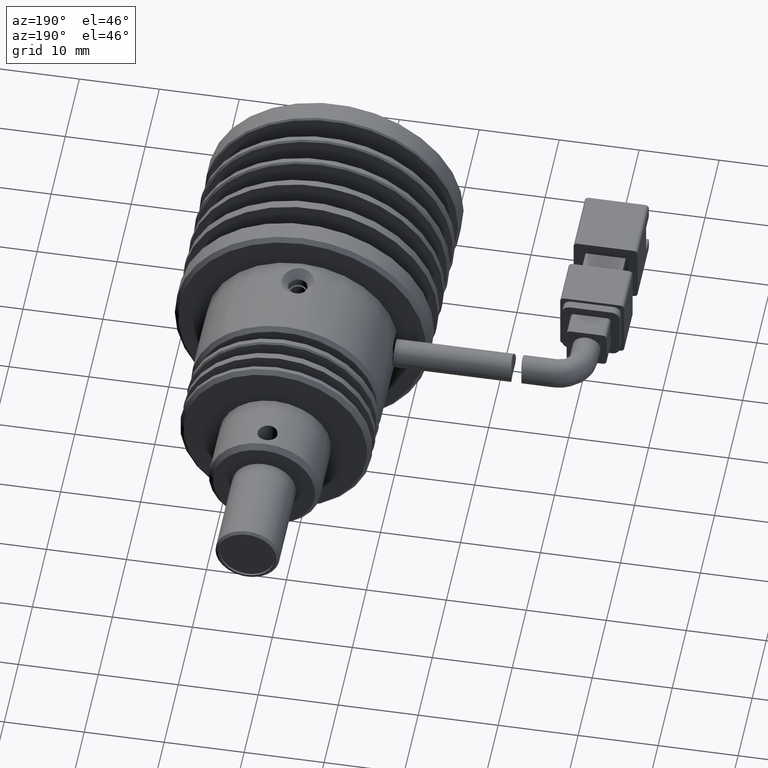
[diagram: clean part render]
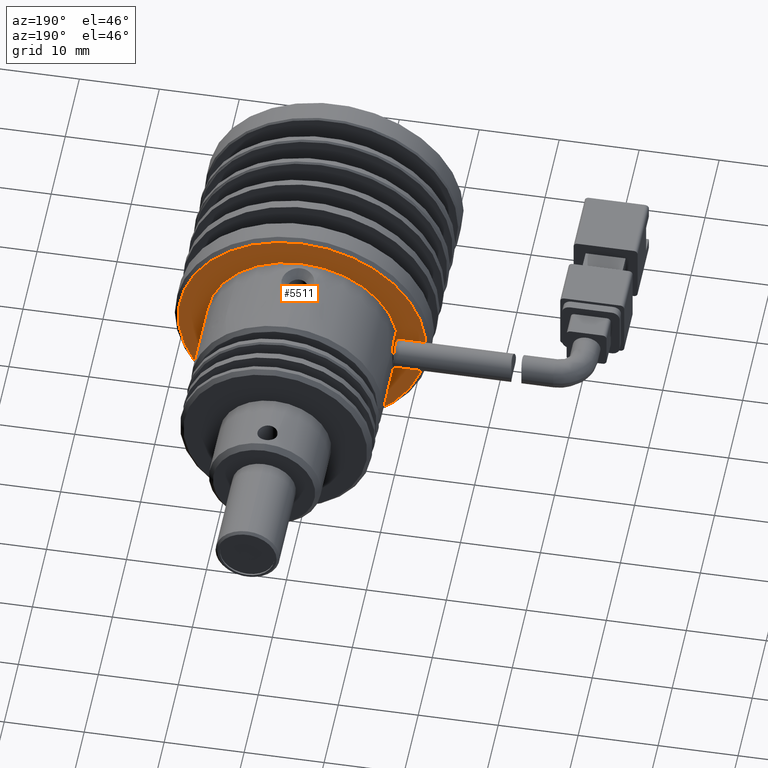
[diagram: same view with one face highlighted and labeled with its STEP entity id]
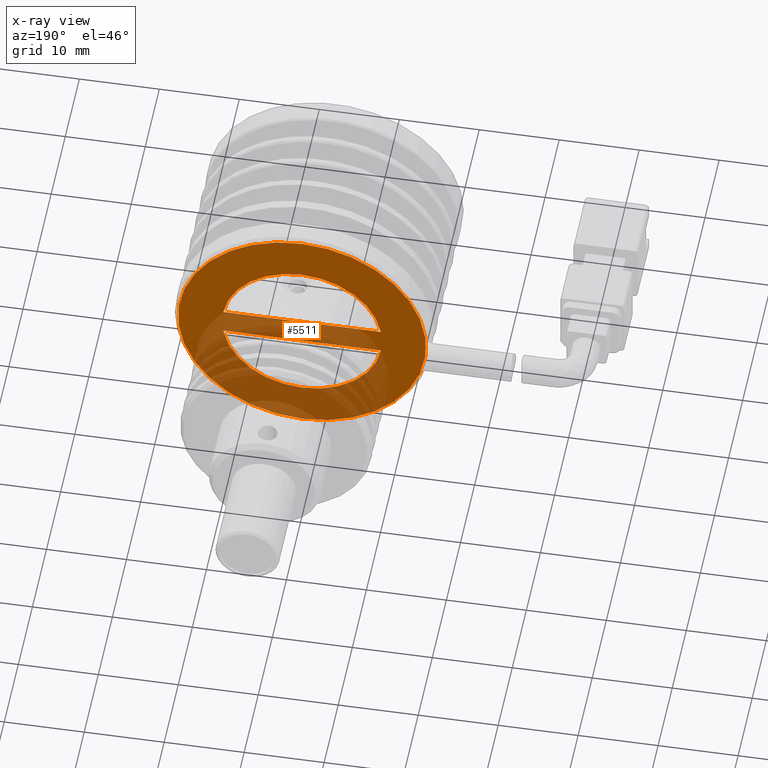
[diagram: x-ray of the same camera — body ghosted, the highlighted face saturated]
A machine part, auxiliary view. The second image highlights one B-rep face of the part: STEP entity #5511.
The next image is the same camera in x-ray: the body ghosted, the highlighted face saturated — about 45% of this face is hidden behind the body in this view.
In plain terms, the highlighted planar face has unit normal (-0, 1, 0).
Its self-contained STEP definition (entity closure, byte-faithful):
#386 = VERTEX_POINT ( 'NONE', #6015 ) ;
#619 = CARTESIAN_POINT ( 'NONE',  ( -7.288001880815157200, -15.71493551001260200, -10.82403592165941900 ) ) ;
#746 = LINE ( 'NONE', #10061, #12517 ) ;
#960 = CARTESIAN_POINT ( 'NONE',  ( 2.574933787635694100, -15.71493551001260200, 6.325964078340590800 ) ) ;
#1023 = CIRCLE ( 'NONE', #3349, 10.00000000000000000 ) ;
#1653 = CARTESIAN_POINT ( 'NONE',  ( 12.43786945608654000, -15.71493551001260200, -7.524035921659418600 ) ) ;
#1907 = DIRECTION ( 'NONE',  ( -0.0000000000000000000, -1.000000000000000000, -0.0000000000000000000 ) ) ;
#2625 = CARTESIAN_POINT ( 'NONE',  ( 2.574933787635692400, -15.71493551001260200, -10.82403592165941900 ) ) ;
#3349 = AXIS2_PLACEMENT_3D ( 'NONE', #11129, #1907, #12672 ) ;
#4018 = DIRECTION ( 'NONE',  ( 0.0000000000000000000, -1.000000000000000000, 1.084202172485504400E-016 ) ) ;
#4073 = FACE_BOUND ( 'NONE', #16603, .T. ) ;
#4107 = VERTEX_POINT ( 'NONE', #619 ) ;
#4232 = DIRECTION ( 'NONE',  ( -0.0000000000000000000, 1.000000000000000000, 0.0000000000000000000 ) ) ;
#4377 = VERTEX_POINT ( 'NONE', #9357 ) ;
#4570 = DIRECTION ( 'NONE',  ( 0.0000000000000000000, -1.000000000000000000, 1.084202172485504400E-016 ) ) ;
#4988 = CIRCLE ( 'NONE', #10291, 10.00000000000000000 ) ;
#5511 = ADVANCED_FACE ( 'NONE', ( #4073, #19913, #12231 ), #13389, .T. ) ;
#5565 = DIRECTION ( 'NONE',  ( -0.0000000000000000000, -1.000000000000000000, -0.0000000000000000000 ) ) ;
#5672 = DIRECTION ( 'NONE',  ( -1.000000000000000000, -0.0000000000000000000, -0.0000000000000000000 ) ) ;
#6015 = CARTESIAN_POINT ( 'NONE',  ( 12.43786945608654200, -15.71493551001260200, -10.82403592165941900 ) ) ;
#6379 = VECTOR ( 'NONE', #5672, 1000.000000000000000 ) ;
#6393 = VERTEX_POINT ( 'NONE', #960 ) ;
#6487 = EDGE_CURVE ( 'NONE', #386, #4107, #18168, .T. ) ;
#7250 = VERTEX_POINT ( 'NONE', #10377 ) ;
#7369 = ORIENTED_EDGE ( 'NONE', *, *, #15190, .T. ) ;
#8597 = EDGE_LOOP ( 'NONE', ( #17521, #11645 ) ) ;
#9355 = AXIS2_PLACEMENT_3D ( 'NONE', #13236, #4018, #14780 ) ;
#9357 = CARTESIAN_POINT ( 'NONE',  ( 2.574933787635692400, -15.71493551001260200, -24.67403592165943100 ) ) ;
#10061 = CARTESIAN_POINT ( 'NONE',  ( 2.574933787635692400, -15.71493551001260200, -7.524035921659418600 ) ) ;
#10291 = AXIS2_PLACEMENT_3D ( 'NONE', #14776, #5565, #16312 ) ;
#10377 = CARTESIAN_POINT ( 'NONE',  ( -7.288001880815157200, -15.71493551001260200, -7.524035921659418600 ) ) ;
#10995 = EDGE_CURVE ( 'NONE', #4377, #6393, #19371, .T. ) ;
#11129 = CARTESIAN_POINT ( 'NONE',  ( 2.574933787635692400, -15.71493551001260500, -9.174035921659418900 ) ) ;
#11645 = ORIENTED_EDGE ( 'NONE', *, *, #17379, .F. ) ;
#12231 = FACE_OUTER_BOUND ( 'NONE', #8597, .T. ) ;
#12517 = VECTOR ( 'NONE', #17712, 1000.000000000000000 ) ;
#12574 = ORIENTED_EDGE ( 'NONE', *, *, #6487, .T. ) ;
#12672 = DIRECTION ( 'NONE',  ( 1.000000000000000000, 0.0000000000000000000, 0.0000000000000000000 ) ) ;
#13236 = CARTESIAN_POINT ( 'NONE',  ( 2.574933787635692400, -15.71493551001260200, -9.174035921659418900 ) ) ;
#13389 = PLANE ( 'NONE',  #19617 ) ;
#13450 = CARTESIAN_POINT ( 'NONE',  ( 2.574933787635692400, -15.71493551001260200, -9.174035921659418900 ) ) ;
#13761 = CARTESIAN_POINT ( 'NONE',  ( 2.574933787635692400, -15.71493551001260200, -9.174035921659418900 ) ) ;
#14205 = VERTEX_POINT ( 'NONE', #1653 ) ;
#14635 = EDGE_CURVE ( 'NONE', #4107, #386, #1023, .T. ) ;
#14776 = CARTESIAN_POINT ( 'NONE',  ( 2.574933787635692400, -15.71493551001260500, -9.174035921659418900 ) ) ;
#14780 = DIRECTION ( 'NONE',  ( 0.0000000000000000000, 0.0000000000000000000, -1.000000000000000000 ) ) ;
#14998 = DIRECTION ( 'NONE',  ( 1.000000000000000000, 0.0000000000000000000, 0.0000000000000000000 ) ) ;
#15190 = EDGE_CURVE ( 'NONE', #7250, #14205, #746, .T. ) ;
#15319 = DIRECTION ( 'NONE',  ( 0.0000000000000000000, 0.0000000000000000000, -1.000000000000000000 ) ) ;
#16312 = DIRECTION ( 'NONE',  ( 1.000000000000000000, 0.0000000000000000000, 0.0000000000000000000 ) ) ;
#16603 = EDGE_LOOP ( 'NONE', ( #18767, #7369 ) ) ;
#16886 = EDGE_CURVE ( 'NONE', #14205, #7250, #4988, .T. ) ;
#17133 = EDGE_LOOP ( 'NONE', ( #12574, #18330 ) ) ;
#17379 = EDGE_CURVE ( 'NONE', #6393, #4377, #19144, .T. ) ;
#17521 = ORIENTED_EDGE ( 'NONE', *, *, #10995, .F. ) ;
#17712 = DIRECTION ( 'NONE',  ( 1.000000000000000000, 0.0000000000000000000, 0.0000000000000000000 ) ) ;
#18168 = LINE ( 'NONE', #2625, #6379 ) ;
#18330 = ORIENTED_EDGE ( 'NONE', *, *, #14635, .T. ) ;
#18767 = ORIENTED_EDGE ( 'NONE', *, *, #16886, .T. ) ;
#19144 = CIRCLE ( 'NONE', #19793, 15.50000000000001100 ) ;
#19371 = CIRCLE ( 'NONE', #9355, 15.50000000000001100 ) ;
#19617 = AXIS2_PLACEMENT_3D ( 'NONE', #13450, #4232, #14998 ) ;
#19793 = AXIS2_PLACEMENT_3D ( 'NONE', #13761, #4570, #15319 ) ;
#19913 = FACE_BOUND ( 'NONE', #17133, .T. ) ;